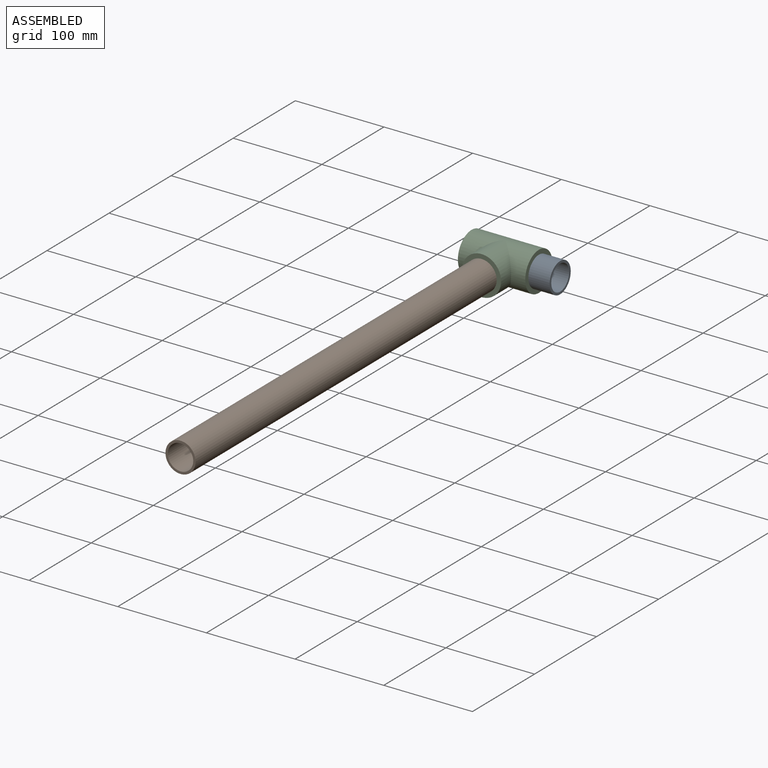
[diagram: assembled view]
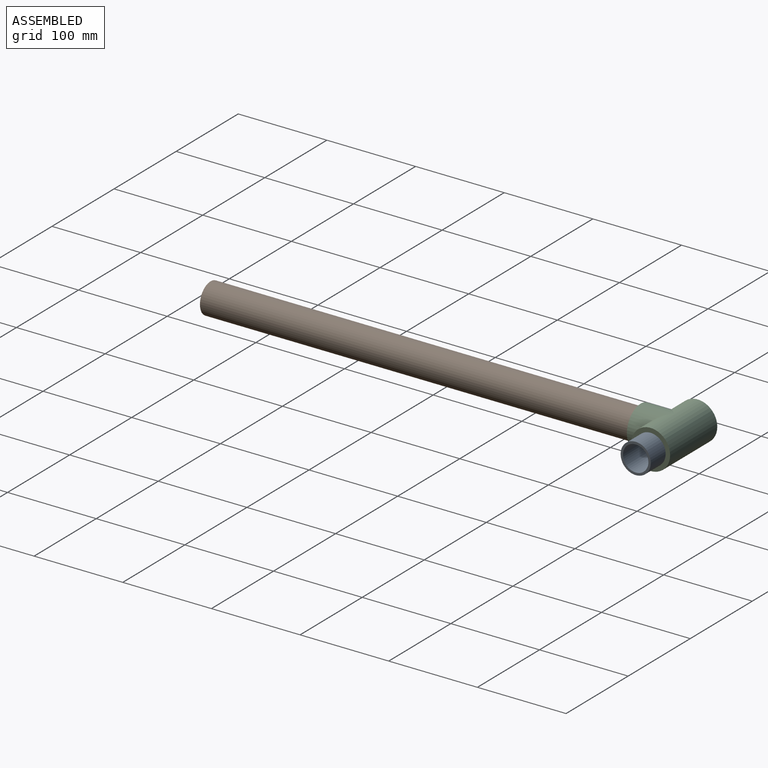
[diagram: assembled view, second angle]
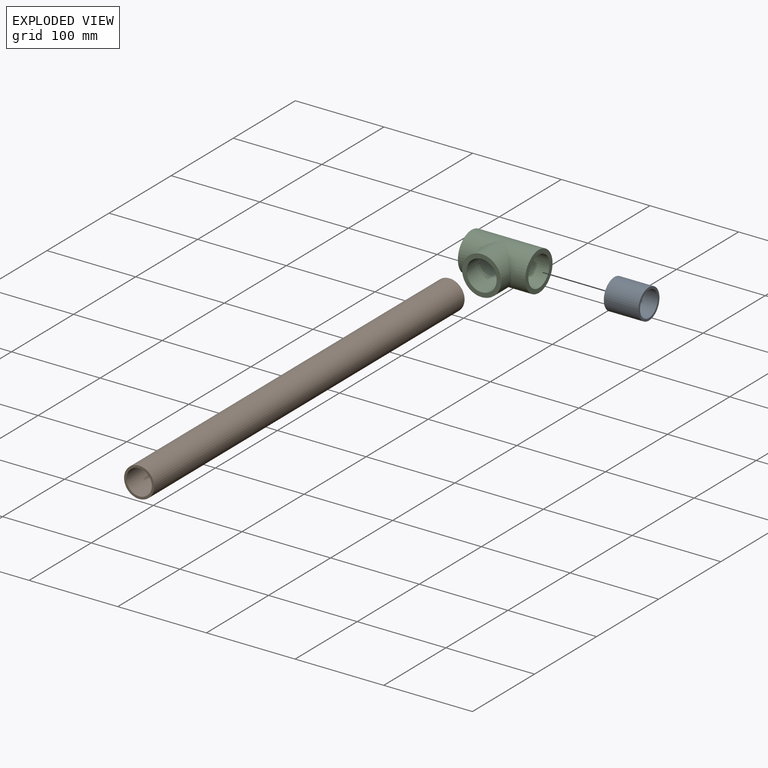
[diagram: exploded view]
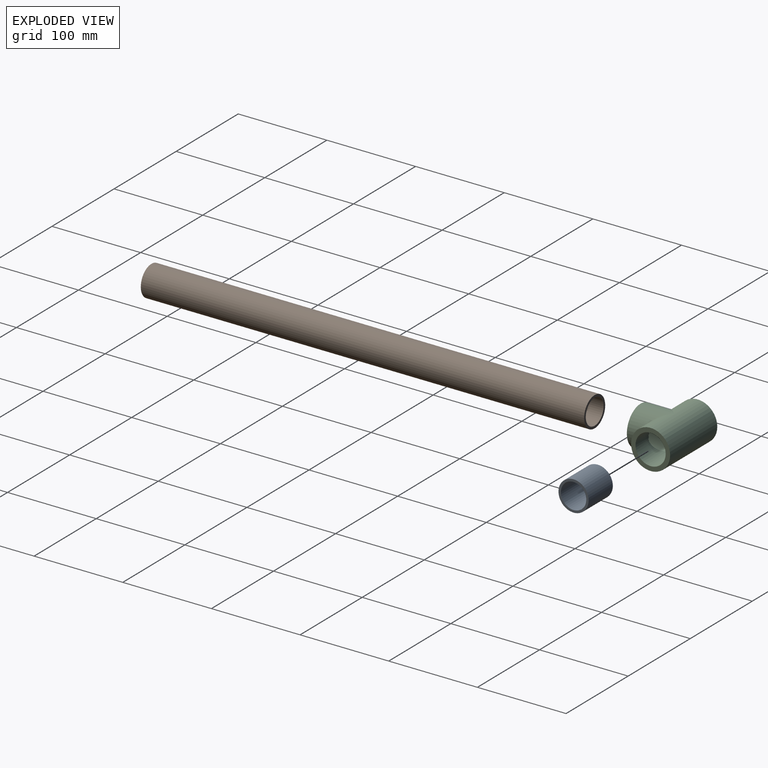
[diagram: exploded view, second angle]
ASSEMBLY  parts=3 mates=2
PART A: 4 faces, bbox 34x39x34 mm
  f0: cylinder r=14.35mm len=39mm, axis (0,1,0), area 3516.4mm2, adj f2,f3
  f1: cylinder r=17mm len=39mm, axis (0,1,0), area 4165.8mm2, adj f2,f3
  f2: plane 34x34mm, normal (0,-1,0), area 261mm2, adj f0,f1
  f3: plane 34x34mm, normal (0,1,0), area 261mm2, adj f0,f1
PART B: 4 faces, bbox 34x500x34 mm
  f0: cylinder r=14.35mm len=500mm, axis (0,1,0), area 45081.9mm2, adj f2,f3
  f1: cylinder r=17mm len=500mm, axis (0,1,0), area 53407.1mm2, adj f2,f3
  f2: plane 34x34mm, normal (0,-1,0), area 261mm2, adj f0,f1
  f3: plane 34x34mm, normal (0,1,0), area 261mm2, adj f0,f1
PART C: 7 faces, bbox 60x44x76 mm
  f0: cylinder r=17mm len=76mm, axis (0,0,1), area 6961.9mm2, adj f1,f2,f6
  f1: plane 44x44mm, normal (0,0,-1), area 612.6mm2, adj f0,f3
  f2: plane 44x44mm, normal (0,0,1), area 612.6mm2, adj f0,f3
  f3: cylinder r=22mm len=76mm, axis (0,0,1), area 8569.5mm2, adj f1,f2,f4
  f4: cylinder r=22mm len=44mm, axis (1,0,0), area 3316.7mm2, adj f3,f5
  f5: plane 44x44mm, normal (-1,0,0), area 612.6mm2, adj f4,f6
  f6: cylinder r=17mm len=38mm, axis (-1,0,0), area 2902.9mm2, adj f0,f5
PLACE A rot(axis=(0.71,0.71,0),180deg) t=(-140.34,170.23,-128.92)mm
PLACE B t=(-202.34,147.23,-128.92)mm
PLACE C rot(axis=(0.58,0.58,0.58),120deg) t=(-202.34,170.23,-128.92)mm
MATE fastened B.f0 <-> C.f4  axis (0,1,0) through (-202.34,147.23,-128.92)mm
MATE fastened A.f0 <-> C.f0  axis (1,0,0) through (-179.34,170.23,-128.92)mm
